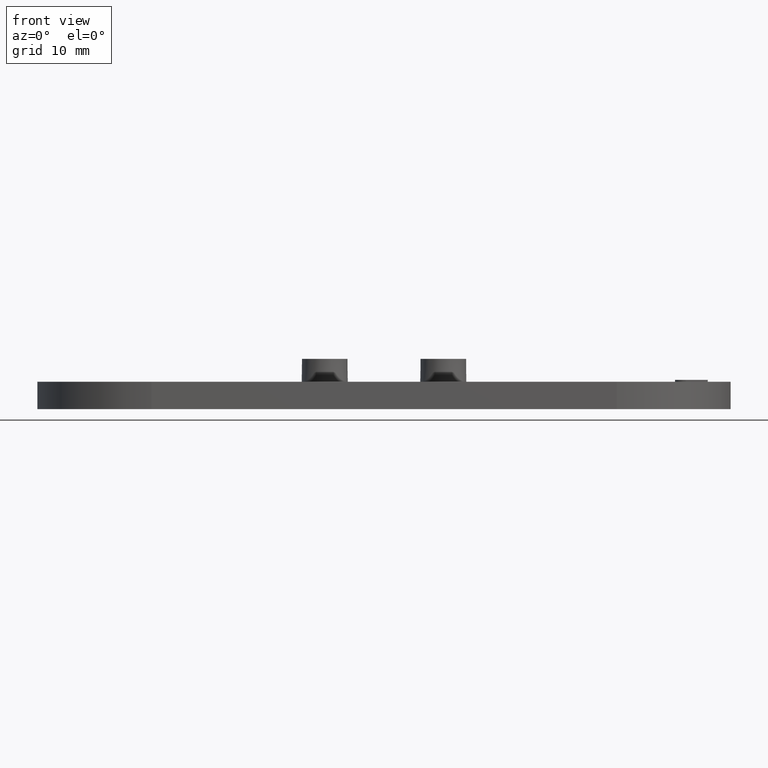
[diagram: clean part render]
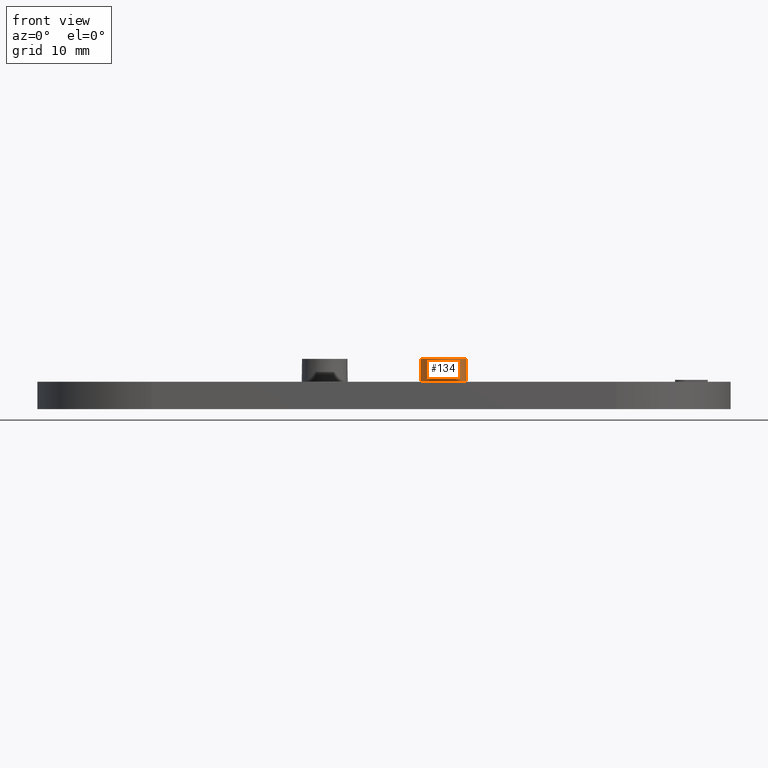
[diagram: same view with one face highlighted and labeled with its STEP entity id]
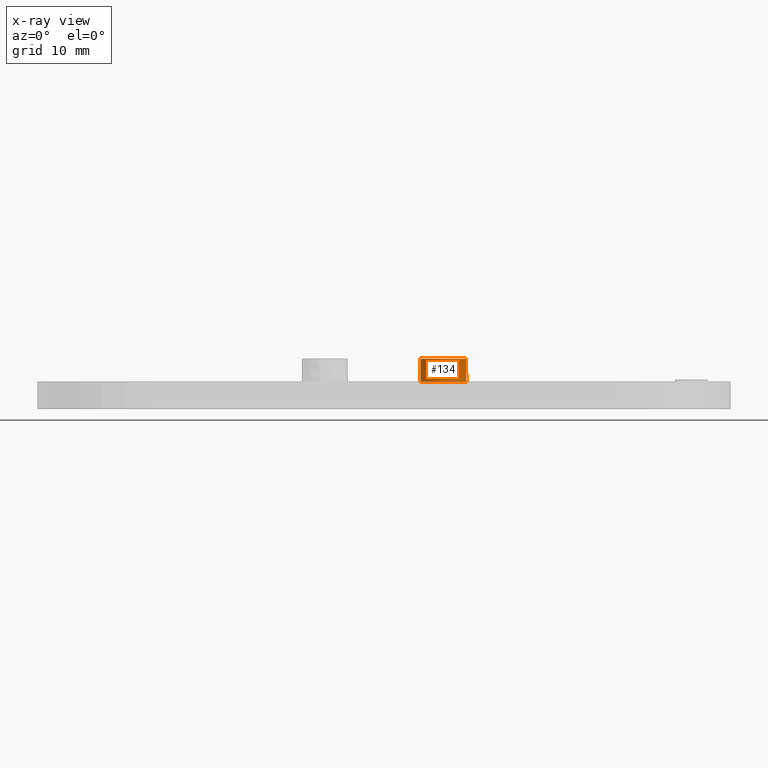
[diagram: x-ray of the same camera — body ghosted, the highlighted face saturated]
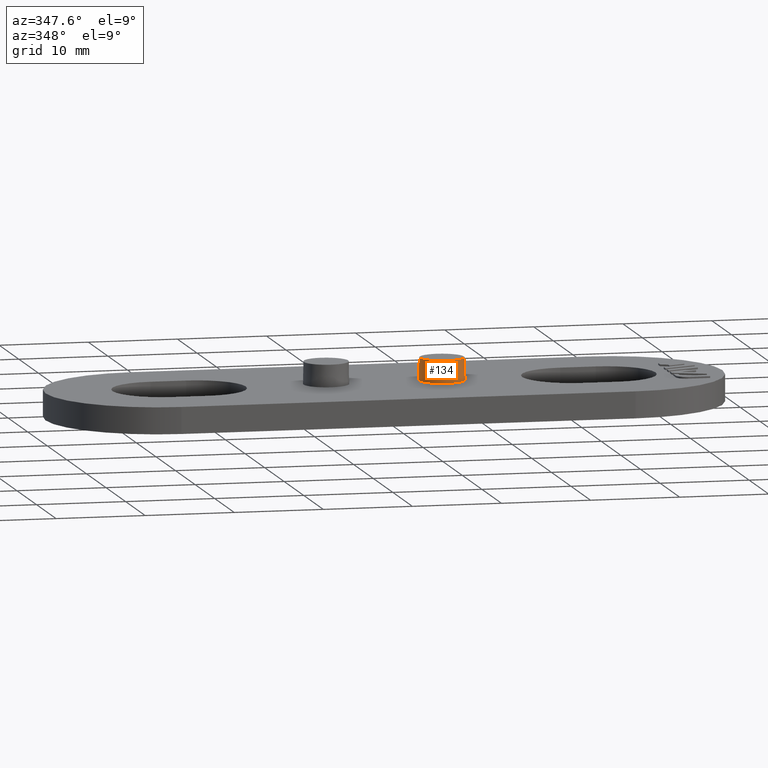
[diagram: same view with one face highlighted and labeled with its STEP entity id]
A machine part, front view. The second image highlights one B-rep face of the part: STEP entity #134.
The next image is the same camera in x-ray: the body ghosted, the highlighted face saturated — about 0% of this face is hidden behind the body in this view.
A second angle (auxiliary view) of the same face is appended — the face is thin or edge-on in the first view.
In plain terms, the highlighted conical surface has half-angle 1 deg.
Its self-contained STEP definition (entity closure, byte-faithful):
#134 = ADVANCED_FACE( '', ( #278, #279 ), #280, .T. );
#278 = FACE_OUTER_BOUND( '', #435, .T. );
#279 = FACE_BOUND( '', #436, .T. );
#280 = CONICAL_SURFACE( '', #437, 2.50000000000000, 0.0174532925199433 );
#435 = EDGE_LOOP( '', ( #953 ) );
#436 = EDGE_LOOP( '', ( #954 ) );
#437 = AXIS2_PLACEMENT_3D( '', #955, #956, #957 );
#953 = ORIENTED_EDGE( '', *, *, #1060, .F. );
#954 = ORIENTED_EDGE( '', *, *, #1200, .T. );
#955 = CARTESIAN_POINT( '', ( 6.50000000000000, 3.36766747301154E-016, 5.50000000000001 ) );
#956 = DIRECTION( '', ( 0.000000000000000, -6.12303176911189E-017, -1.00000000000000 ) );
#957 = DIRECTION( '', ( 0.000000000000000, 1.00000000000000, -6.12303176911189E-017 ) );
#1060 = EDGE_CURVE( '', #1268, #1268, #1269, .T. );
#1200 = EDGE_CURVE( '', #1496, #1496, #1497, .T. );
#1268 = VERTEX_POINT( '', #1583 );
#1269 = CIRCLE( '', #1584, 2.54363766232054 );
#1496 = VERTEX_POINT( '', #1934 );
#1497 = CIRCLE( '', #1935, 2.50000000000000 );
#1583 = CARTESIAN_POINT( '', ( 6.50000000000000, 2.54363766232054, 3.00000000000000 ) );
#1584 = AXIS2_PLACEMENT_3D( '', #2006, #2007, #2008 );
#1934 = CARTESIAN_POINT( '', ( 9.00000000000000, 4.89842541528951E-016, 5.50000000000001 ) );
#1935 = AXIS2_PLACEMENT_3D( '', #2180, #2181, #2182 );
#2006 = CARTESIAN_POINT( '', ( 6.50000000000000, 1.83690953073357E-016, 3.00000000000000 ) );
#2007 = DIRECTION( '', ( 0.000000000000000, -6.12303176911189E-017, -1.00000000000000 ) );
#2008 = DIRECTION( '', ( 0.000000000000000, 1.00000000000000, -6.12303176911189E-017 ) );
#2180 = CARTESIAN_POINT( '', ( 6.50000000000000, 3.36766747301154E-016, 5.50000000000001 ) );
#2181 = DIRECTION( '', ( -4.37905770101505E-049, -6.12303176911189E-017, -1.00000000000000 ) );
#2182 = DIRECTION( '', ( 1.00000000000000, 6.12303176911189E-017, -3.74915180455534E-033 ) );